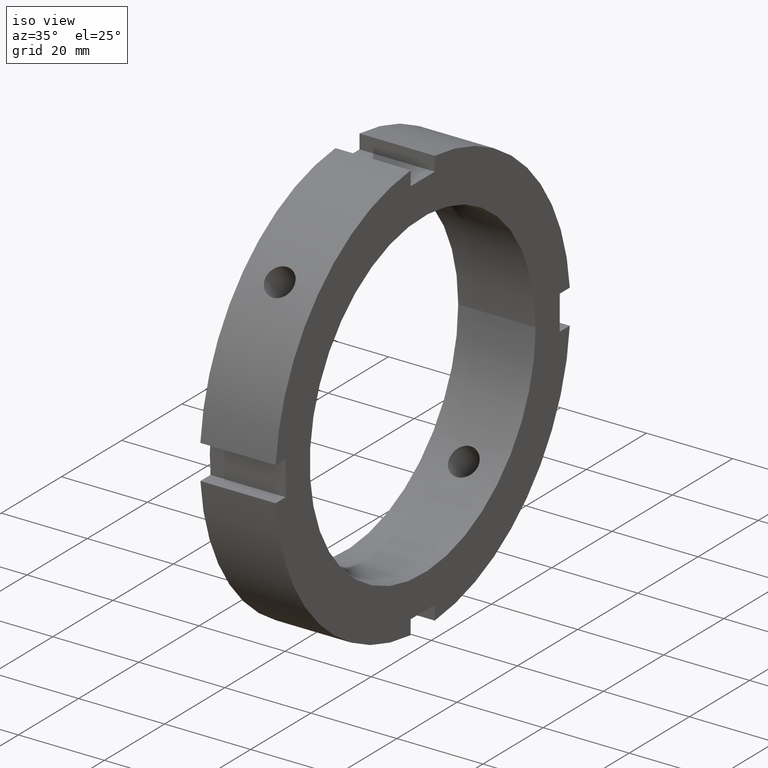
[diagram: clean part render]
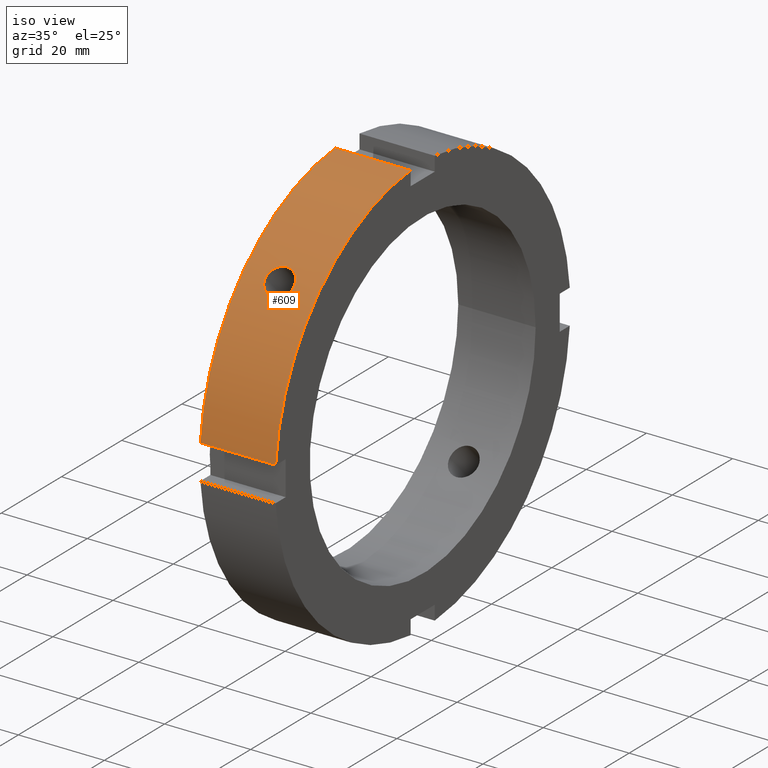
[diagram: same view with one face highlighted and labeled with its STEP entity id]
A machine part, iso view. The second image highlights one B-rep face of the part: STEP entity #609.
In plain terms, the highlighted cylindrical surface (partial cylindrical patch) has radius 49 mm, axis along (1, 0, 0).
Its self-contained STEP definition (entity closure, byte-faithful):
#73=CARTESIAN_POINT('',(8.999999999999993,-36.918511265307266,32.218372490760309));
#74=VERTEX_POINT('',#73);
#75=CARTESIAN_POINT('',(8.999999999999993,-36.918511265307266,32.218372490760309));
#76=CARTESIAN_POINT('',(8.582556277606143,-36.918511265307266,32.218372490760309));
#77=CARTESIAN_POINT('',(8.137375601163921,-36.863671370278773,32.281552212767139));
#78=CARTESIAN_POINT('',(7.318571864220590,-36.638869814972345,32.536473361223202));
#79=CARTESIAN_POINT('',(6.944937912090239,-36.468695547653226,32.727992223894006));
#80=CARTESIAN_POINT('',(6.354923524804404,-36.071524740537441,33.165227765273109));
#81=CARTESIAN_POINT('',(6.099167697581187,-35.817987149768399,33.440088510433057));
#82=CARTESIAN_POINT('',(5.759952391753496,-35.254040531350348,34.034105677376949));
#83=CARTESIAN_POINT('',(5.676499999999991,-34.943409353445787,34.353055202835883));
#84=CARTESIAN_POINT('',(5.676499999999995,-34.353055202835847,34.943409353445823));
#85=CARTESIAN_POINT('',(5.759952391753497,-34.034105677376914,35.254040531350384));
#86=CARTESIAN_POINT('',(6.099167697581198,-33.440088510433014,35.817987149768442));
#87=CARTESIAN_POINT('',(6.354923524804404,-33.165227765273059,36.071524740537491));
#88=CARTESIAN_POINT('',(6.944937912090245,-32.727992223893956,36.468695547653269));
#89=CARTESIAN_POINT('',(7.318571864220601,-32.536473361223166,36.638869814972381));
#90=CARTESIAN_POINT('',(8.137375601163932,-32.281552212767110,36.863671370278801));
#91=CARTESIAN_POINT('',(8.582556277606146,-32.218372490760281,36.918511265307295));
#92=CARTESIAN_POINT('',(9.417443722393841,-32.218372490760281,36.918511265307295));
#93=CARTESIAN_POINT('',(9.862624398836053,-32.281552212767110,36.863671370278801));
#94=CARTESIAN_POINT('',(10.681428135779383,-32.536473361223166,36.638869814972381));
#95=CARTESIAN_POINT('',(11.055062087909741,-32.727992223893956,36.468695547653269));
#96=CARTESIAN_POINT('',(11.645076475195584,-33.165227765273059,36.071524740537491));
#97=CARTESIAN_POINT('',(11.900832302418788,-33.440088510433014,35.817987149768442));
#98=CARTESIAN_POINT('',(12.240047608246488,-34.034105677376914,35.254040531350384));
#99=CARTESIAN_POINT('',(12.323499999999994,-34.353055202835847,34.943409353445823));
#100=CARTESIAN_POINT('',(12.323499999999994,-34.943409353445787,34.353055202835883));
#101=CARTESIAN_POINT('',(12.240047608246492,-35.254040531350348,34.034105677376949));
#102=CARTESIAN_POINT('',(11.900832302418801,-35.817987149768399,33.440088510433057));
#103=CARTESIAN_POINT('',(11.645076475195584,-36.071524740537441,33.165227765273109));
#104=CARTESIAN_POINT('',(11.055062087909748,-36.468695547653226,32.727992223894006));
#105=CARTESIAN_POINT('',(10.681428135779393,-36.638869814972345,32.536473361223202));
#106=CARTESIAN_POINT('',(9.862624398836063,-36.863671370278773,32.281552212767139));
#107=CARTESIAN_POINT('',(9.417443722393845,-36.918511265307266,32.218372490760309));
#108=CARTESIAN_POINT('',(8.999999999999993,-36.918511265307266,32.218372490760309));
#109=B_SPLINE_CURVE_WITH_KNOTS('',3,(#75,#76,#77,#78,#79,#80,#81,#82,#83,#84,#85,#86,#87,#88,#89,#90,#91,#92,#93,#94,#95,#96,#97,#98,#99,#100,#101,#102,#103,#104,#105,#106,#107,#108),.UNSPECIFIED.,.T.,.U.,(4,2,2,2,2,2,2,2,2,2,2,2,2,2,2,2,4),(0.0,0.125233116718155,0.250466233436311,0.375699260395684,0.500932287355057,0.626165314314431,0.751398341273805,0.876631457991960,1.001864574710114,1.127097691428268,1.252330808146423,1.377563835105797,1.502796862065172,1.628029889024544,1.753262915983918,1.878496032702073,2.003729149420228),.UNSPECIFIED.);
#110=EDGE_CURVE('',#74,#74,#109,.T.);
#353=CARTESIAN_POINT('',(0.499999999999989,-48.836461788299125,4.000000000000004));
#354=VERTEX_POINT('',#353);
#369=CARTESIAN_POINT('',(17.999999999999989,-48.836461788299125,4.000000000000004));
#370=VERTEX_POINT('',#369);
#377=CARTESIAN_POINT('',(0.499999999999989,-48.836461788299125,4.000000000000004));
#378=DIRECTION('',(1.0,0.0,0.0));
#379=VECTOR('',#378,17.500000000000000);
#380=LINE('',#377,#379);
#381=EDGE_CURVE('',#354,#370,#380,.T.);
#493=CARTESIAN_POINT('',(0.499999999999989,-3.999999999999995,48.836461788299125));
#494=VERTEX_POINT('',#493);
#503=CARTESIAN_POINT('',(17.999999999999989,-3.999999999999995,48.836461788299125));
#504=VERTEX_POINT('',#503);
#505=CARTESIAN_POINT('',(17.999999999999989,-3.999999999999996,48.836461788299125));
#506=DIRECTION('',(-1.0,0.0,0.0));
#507=VECTOR('',#506,17.500000000000000);
#508=LINE('',#505,#507);
#509=EDGE_CURVE('',#504,#494,#508,.T.);
#583=CARTESIAN_POINT('',(9.249999999999989,0.0,0.0));
#584=DIRECTION('',(1.0,0.0,0.0));
#585=DIRECTION('',(0.0,1.0,0.0));
#586=AXIS2_PLACEMENT_3D('',#583,#584,#585);
#587=CYLINDRICAL_SURFACE('',#586,49.0);
#588=ORIENTED_EDGE('',*,*,#381,.T.);
#589=CARTESIAN_POINT('',(17.999999999999989,0.0,0.0));
#590=DIRECTION('',(1.0,0.0,0.0));
#591=DIRECTION('',(0.0,1.0,0.0));
#592=AXIS2_PLACEMENT_3D('',#589,#590,#591);
#593=CIRCLE('',#592,49.0);
#594=EDGE_CURVE('',#504,#370,#593,.T.);
#595=ORIENTED_EDGE('',*,*,#594,.F.);
#596=ORIENTED_EDGE('',*,*,#509,.T.);
#597=CARTESIAN_POINT('',(0.499999999999989,0.0,0.0));
#598=DIRECTION('',(1.0,0.0,0.0));
#599=DIRECTION('',(0.0,1.0,0.0));
#600=AXIS2_PLACEMENT_3D('',#597,#598,#599);
#601=CIRCLE('',#600,49.0);
#602=EDGE_CURVE('',#494,#354,#601,.T.);
#603=ORIENTED_EDGE('',*,*,#602,.T.);
#604=EDGE_LOOP('',(#588,#595,#596,#603));
#605=FACE_OUTER_BOUND('',#604,.T.);
#606=ORIENTED_EDGE('',*,*,#110,.T.);
#607=EDGE_LOOP('',(#606));
#608=FACE_BOUND('',#607,.T.);
#609=ADVANCED_FACE('',(#605,#608),#587,.T.);